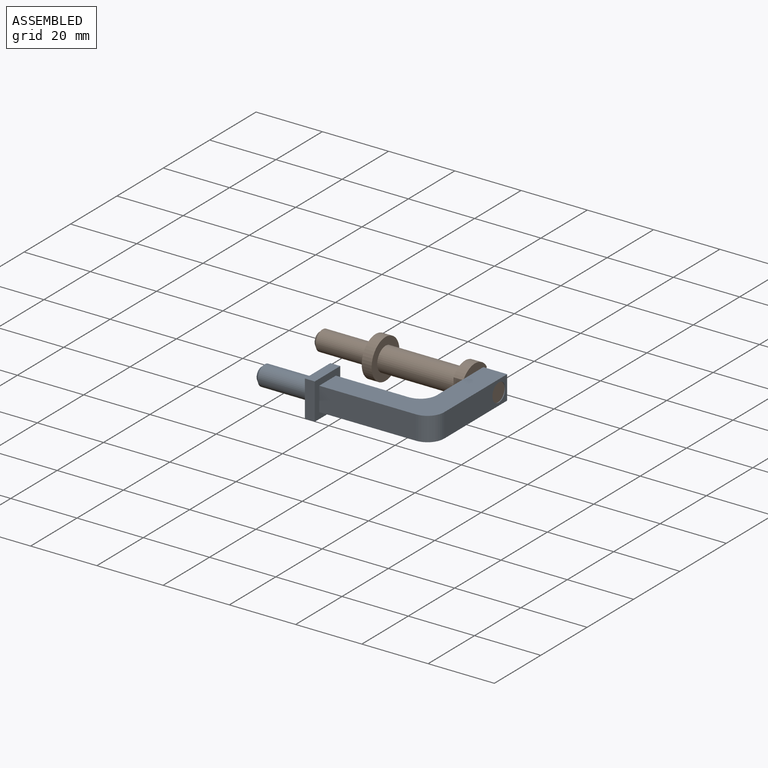
[diagram: assembled view]
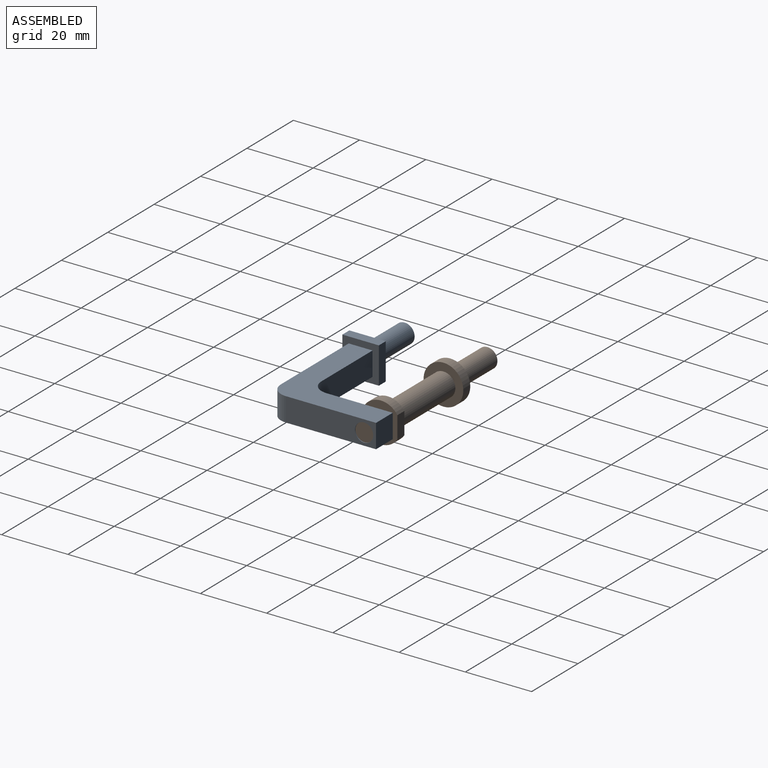
[diagram: assembled view, second angle]
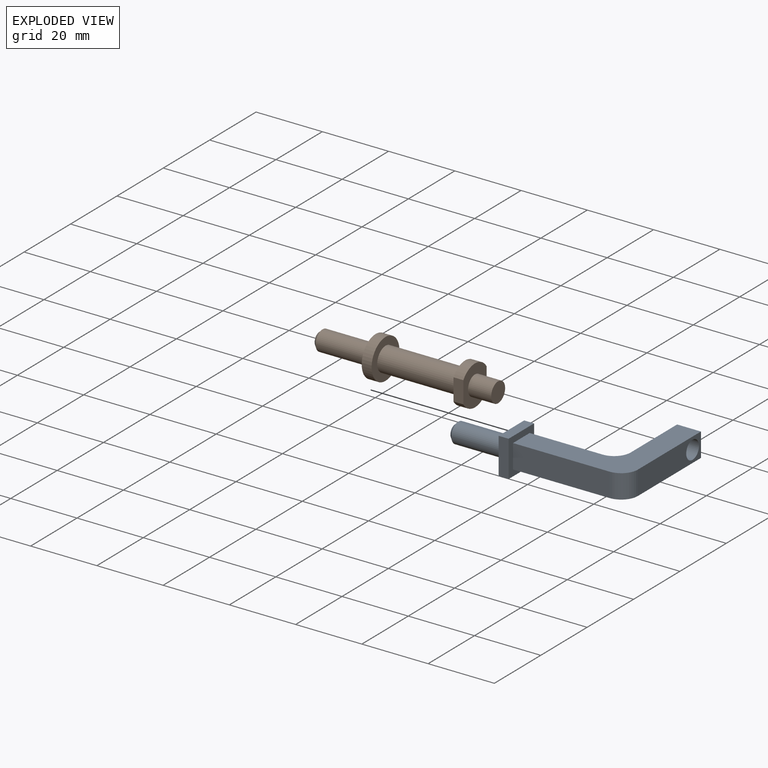
[diagram: exploded view]
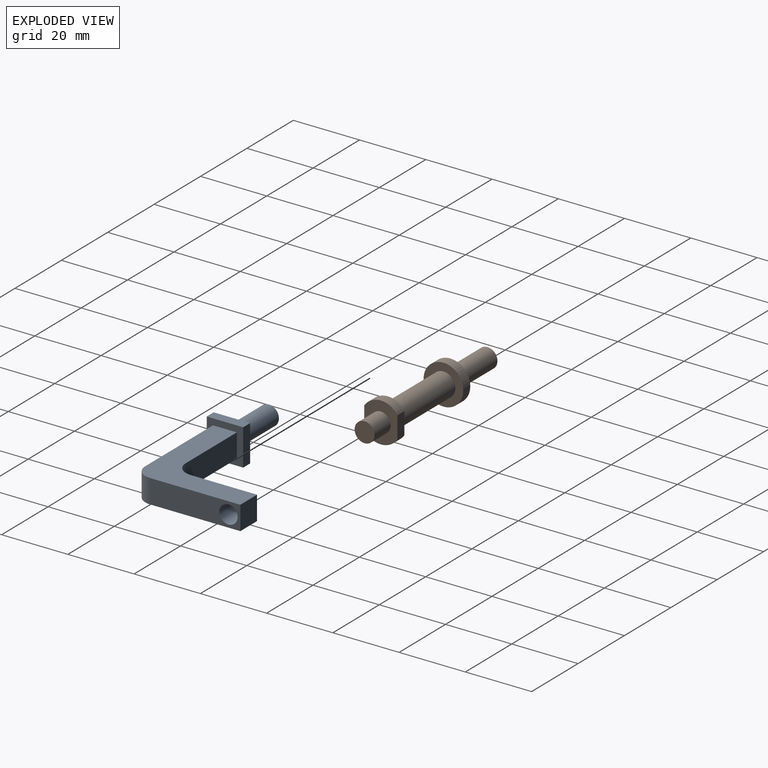
[diagram: exploded view, second angle]
ASSEMBLY  parts=2 mates=2
PART A: 19 faces, bbox 54.2x34.1x11 mm
  f0: plane 22x7.2mm, normal (0,1,0), area 158.4mm2, adj f1,f3,f11,f14
  f1: plane 34.2x32.2mm, normal (0,0,-1), area 426.2mm2, adj f0,f2,f4,f5,f6,f11,f13,f14
  f2: plane 29.2x7.2mm, normal (0,-1,0), area 210.2mm2, adj f1,f3,f11,f13
  f3: plane 34.2x32.2mm, normal (0,0,1), area 426.2mm2, adj f0,f2,f4,f5,f6,f11,f13,f14
  f4: plane 7.2x7.2mm, normal (0,1,0), area 51.8mm2, adj f1,f3,f5,f6
  f5: plane 27.2x7.2mm, normal (1,0,0), area 172.1mm2, adj f1,f3,f4,f13,f15
  f6: plane 20x7.2mm, normal (-1,0,0), area 120.2mm2, adj f1,f3,f4,f14,f15
  f7: plane 11x3mm, normal (0,0,1), area 33mm2, adj f8,f10,f11,f12
  f8: plane 11x3mm, normal (0,1,0), area 33mm2, adj f7,f9,f11,f12
  f9: plane 11x3mm, normal (0,0,-1), area 33mm2, adj f8,f10,f11,f12
  f10: plane 11x3mm, normal (0,-1,0), area 33mm2, adj f7,f9,f11,f12
  f11: plane 11x11mm, normal (1,0,0), area 69.2mm2, adj f0,f1,f2,f3,f7,f8,f9,f10
  f12: plane 11x11mm, normal (-1,0,0), area 92.7mm2, adj f7,f8,f9,f10,f16
  f13: cylinder r=5mm len=7.2mm, axis (0,0,1), area 56.5mm2, adj f1,f2,f3,f5
  f14: cylinder r=5mm len=7.2mm, axis (0,0,1), area 56.5mm2, adj f0,f1,f3,f6
  f15: cylinder r=2.75mm len=7.2mm, axis (-1,0,0), area 124.4mm2, adj f5,f6
  f16: cylinder r=3mm len=16mm, axis (1,0,0), area 301.6mm2, adj f12,f18
  f17: plane 4x4mm, normal (-1,0,0), area 12.6mm2, adj f18
  f18: cone r=2mm half-angle=45deg, axis (1,0,0), area 22.2mm2, adj f16,f17
PART B: 15 faces, bbox 54x12x12 mm
  f0: cylinder r=6mm len=10mm, axis (1,0,0), area 35.5mm2, adj f2,f3,f13,f14
  f1: cylinder r=6mm len=10mm, axis (1,0,0), area 35.5mm2, adj f2,f3,f13,f14
  f2: plane 12x10mm, normal (-1,0,0), area 63.4mm2, adj f0,f1,f4,f13,f14
  f3: plane 12x10mm, normal (1,0,0), area 75.8mm2, adj f0,f1,f11,f13,f14
  f4: cylinder r=3.6mm len=24mm, axis (1,0,0), area 542.9mm2, adj f2,f10
  f5: plane 12x12mm, normal (-1,0,0), area 84.8mm2, adj f6,f9
  f6: cylinder r=3mm len=16mm, axis (1,0,0), area 301.6mm2, adj f5,f8
  f7: plane 4x4mm, normal (-1,0,0), area 12.6mm2, adj f8
  f8: cone r=2mm half-angle=45deg, axis (1,0,0), area 22.2mm2, adj f6,f7
  f9: cylinder r=6mm len=12mm, axis (-1,0,0), area 113.1mm2, adj f5,f10
  f10: plane 12x12mm, normal (1,0,0), area 72.4mm2, adj f4,f9
  f11: cylinder r=3mm len=7mm, axis (-1,0,0), area 131.9mm2, adj f3,f12
  f12: plane 6x6mm, normal (1,0,0), area 28.3mm2, adj f11
  f13: plane 6.63x3mm, normal (0,-1,0), area 19.9mm2, adj f0,f1,f2,f3
  f14: plane 6.63x3mm, normal (0,1,0), area 19.9mm2, adj f0,f1,f2,f3
PLACE A t=(-5.3,11.35,-4.55)mm
PLACE B t=(-5.3,7.75,-4.55)mm
MATE cylindrical B.f11 <-> A.f15  axis (-1,0,0) through (28.2,7.75,-4.55)mm
MATE planar A.f6 <-> B.f3  axis (-1,0,0) through (24.7,1.35,-0.95)mm
